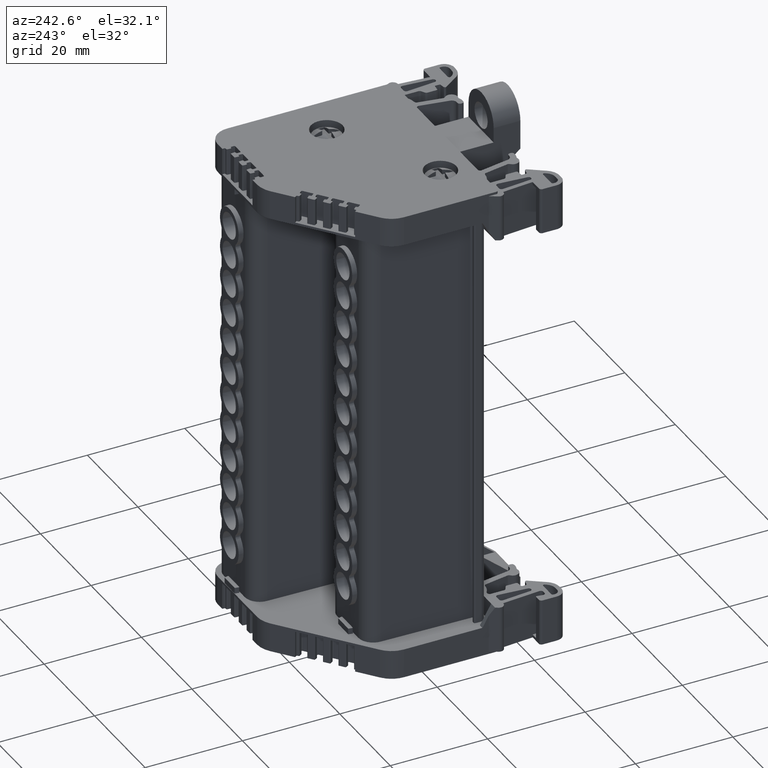
[diagram: clean part render]
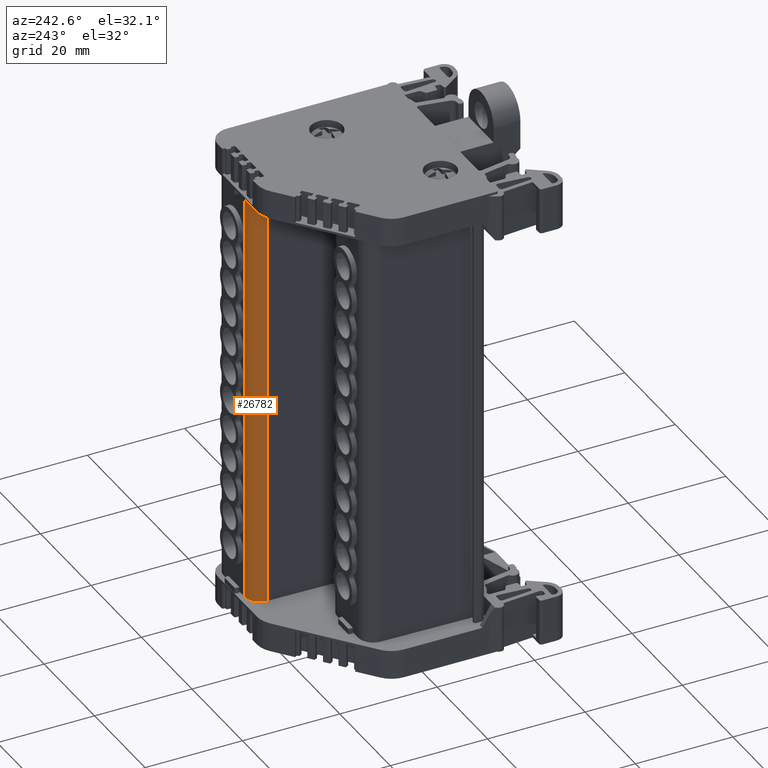
[diagram: same view with one face highlighted and labeled with its STEP entity id]
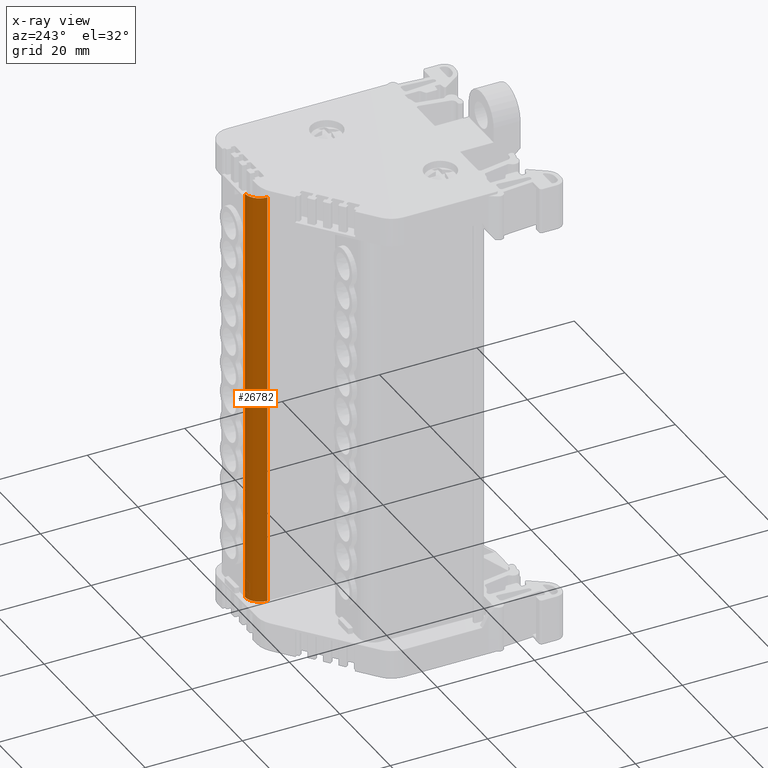
[diagram: x-ray of the same camera — body ghosted, the highlighted face saturated]
A machine part, auxiliary view. The second image highlights one B-rep face of the part: STEP entity #26782.
The next image is the same camera in x-ray: the body ghosted, the highlighted face saturated — about 0% of this face is hidden behind the body in this view.
In plain terms, the highlighted cylindrical surface (edge-blend (fillet) strip) has radius 3.0101 mm, axis along (-0, 0, -1).
Its self-contained STEP definition (entity closure, byte-faithful):
#26407 = EDGE_CURVE ( 'NONE', #31601, #31602, #60571, .T. ) ;
#26430 = EDGE_CURVE ( 'NONE', #31637, #31651, #60643, .T. ) ;
#26445 = EDGE_CURVE ( 'NONE', #31637, #31601, #66943, .T. ) ;
#26455 = EDGE_CURVE ( 'NONE', #31602, #31651, #66965, .T. ) ;
#26782 = ADVANCED_FACE ( 'NONE', ( #63455 ), #63456, .T. ) ;
#31601 = VERTEX_POINT ( 'NONE', #65110 ) ;
#31602 = VERTEX_POINT ( 'NONE', #65128 ) ;
#31637 = VERTEX_POINT ( 'NONE', #65138 ) ;
#31651 = VERTEX_POINT ( 'NONE', #65135 ) ;
#31856 = ORIENTED_EDGE ( 'NONE', *, *, #26455, .T. ) ;
#31882 = ORIENTED_EDGE ( 'NONE', *, *, #26407, .T. ) ;
#31899 = ORIENTED_EDGE ( 'NONE', *, *, #26445, .T. ) ;
#31909 = ORIENTED_EDGE ( 'NONE', *, *, #26430, .F. ) ;
#60559 = DIRECTION ( 'NONE',  ( 6.982962677686110500E-015, -1.604252062634190000E-014, 1.000000000000000000 ) ) ;
#60571 = LINE ( 'NONE', #60574, #66926 ) ;
#60574 = CARTESIAN_POINT ( 'NONE',  ( -41.80561643342627300, 45.44947157171916500, 127.3834854718343200 ) ) ;
#60643 = LINE ( 'NONE', #60655, #66889 ) ;
#60655 = CARTESIAN_POINT ( 'NONE',  ( -38.79612651085020800, 48.51930653520986400, 127.3834854718342900 ) ) ;
#60677 = DIRECTION ( 'NONE',  ( -3.229646657839724900E-028, -1.604252062634175800E-014, 1.000000000000000000 ) ) ;
#60717 = CARTESIAN_POINT ( 'NONE',  ( -38.79612651084960400, 45.50922349867072100, 50.97218928989243400 ) ) ;
#60723 = DIRECTION ( 'NONE',  ( 6.982962677686110500E-015, -1.604252062634190000E-014, 1.000000000000000000 ) ) ;
#60727 = DIRECTION ( 'NONE',  ( 0.0000000000000000000, 1.000000000000000000, 1.613651741088753700E-014 ) ) ;
#60732 = DIRECTION ( 'NONE',  ( 0.0000000000000000000, 1.000000000000000000, 1.613651741088753700E-014 ) ) ;
#60750 = DIRECTION ( 'NONE',  ( -6.982962677686110500E-015, 1.604252062634190000E-014, -1.000000000000000000 ) ) ;
#60752 = CARTESIAN_POINT ( 'NONE',  ( -38.79612651085020800, 45.50922349867211400, -35.85898586028849200 ) ) ;
#63432 = CARTESIAN_POINT ( 'NONE',  ( -38.79612651084907100, 45.50922349866949900, 127.3834854718342900 ) ) ;
#63455 = FACE_OUTER_BOUND ( 'NONE', #82595, .T. ) ;
#63456 = CYLINDRICAL_SURFACE ( 'NONE', #67293, 3.010083036540351000 ) ;
#63459 = DIRECTION ( 'NONE',  ( -6.982962677686110500E-015, 1.604252062634190000E-014, -1.000000000000000000 ) ) ;
#63462 = DIRECTION ( 'NONE',  ( 0.0000000000000000000, 1.000000000000000000, 1.844173418387146900E-014 ) ) ;
#65110 = CARTESIAN_POINT ( 'NONE',  ( -41.80561643342738200, 45.44947157172125400, -35.85898586028850600 ) ) ;
#65128 = CARTESIAN_POINT ( 'NONE',  ( -41.80561643342678500, 45.44947157171952800, 50.97218928989244100 ) ) ;
#65135 = CARTESIAN_POINT ( 'NONE',  ( -38.79612651084987400, 48.51930653521108600, 50.97218928989246900 ) ) ;
#65138 = CARTESIAN_POINT ( 'NONE',  ( -38.79612651085020800, 48.51930653521245800, -35.85898586028843500 ) ) ;
#66889 = VECTOR ( 'NONE', #60677, 1000.000000000000000 ) ;
#66926 = VECTOR ( 'NONE', #60559, 1000.000000000000000 ) ;
#66943 = CIRCLE ( 'NONE', #67001, 3.010083036540351000 ) ;
#66965 = CIRCLE ( 'NONE', #66997, 3.010083036540351000 ) ;
#66997 = AXIS2_PLACEMENT_3D ( 'NONE', #60717, #60750, #60727 ) ;
#67001 = AXIS2_PLACEMENT_3D ( 'NONE', #60752, #60723, #60732 ) ;
#67293 = AXIS2_PLACEMENT_3D ( 'NONE', #63432, #63459, #63462 ) ;
#82595 = EDGE_LOOP ( 'NONE', ( #31882, #31856, #31909, #31899 ) ) ;